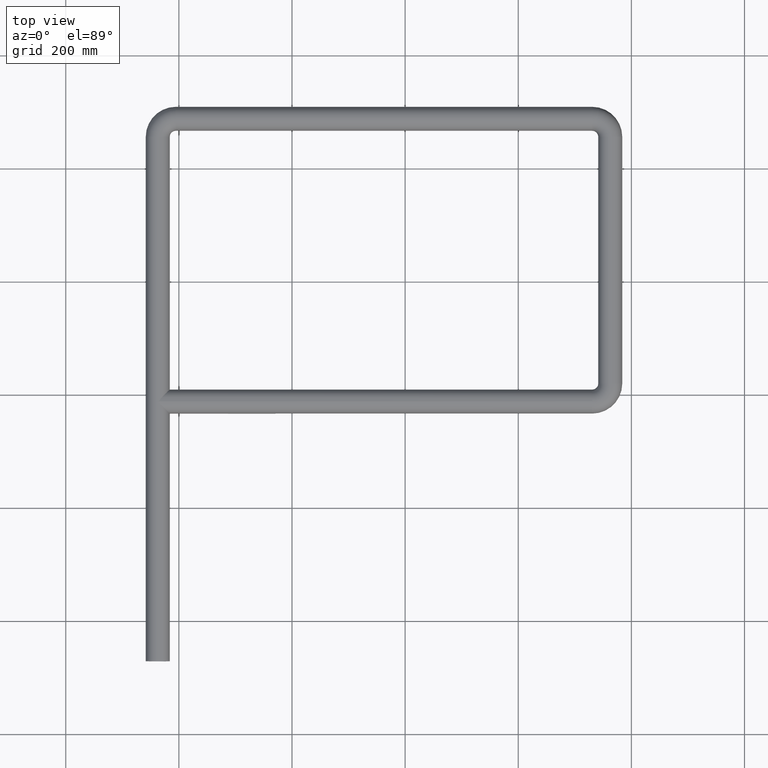
[diagram: clean part render]
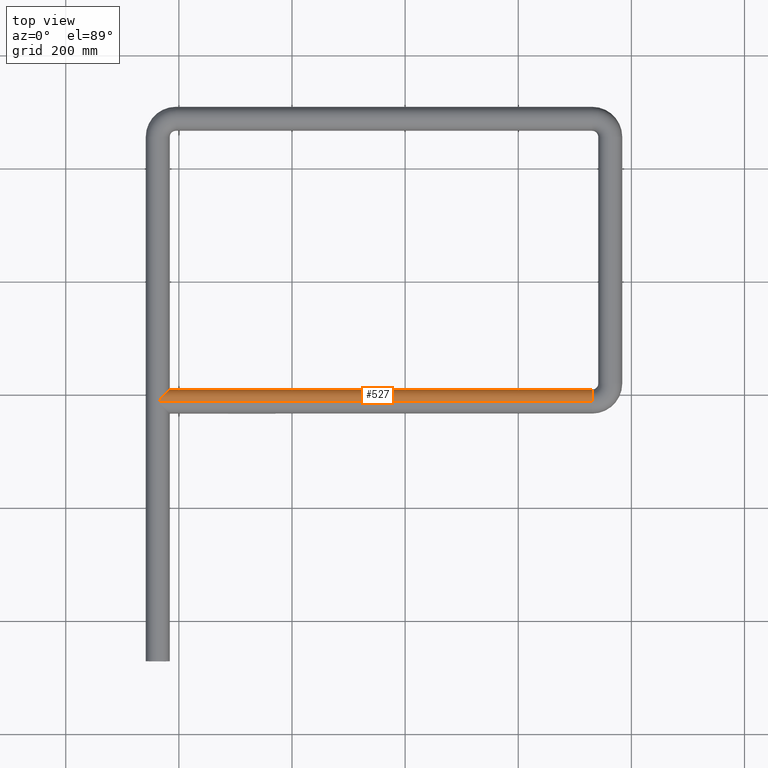
[diagram: same view with one face highlighted and labeled with its STEP entity id]
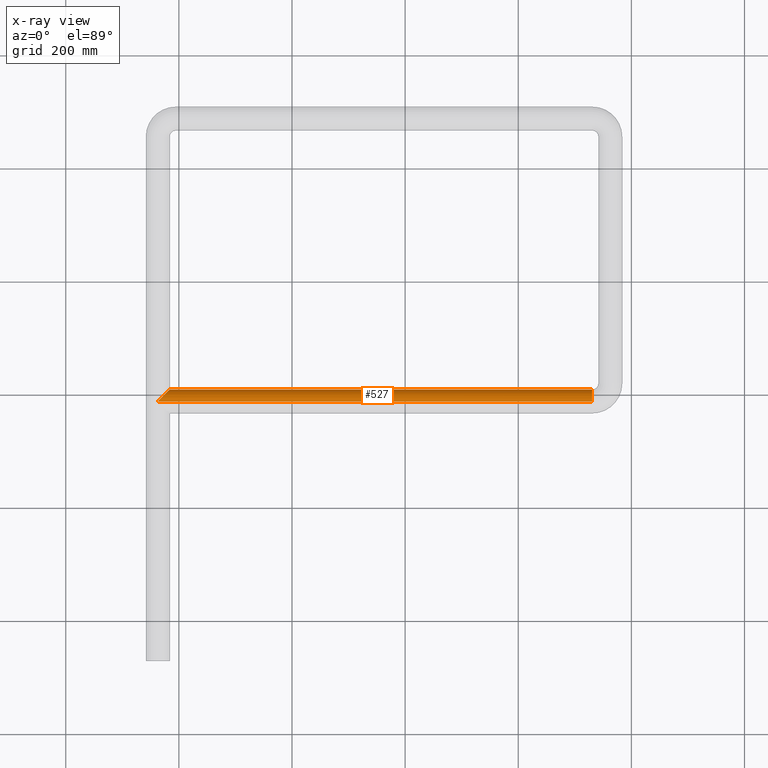
[diagram: x-ray of the same camera — body ghosted, the highlighted face saturated]
A machine part, top view. The second image highlights one B-rep face of the part: STEP entity #527.
The next image is the same camera in x-ray: the body ghosted, the highlighted face saturated — about 0% of this face is hidden behind the body in this view.
In plain terms, the highlighted cylindrical surface (edge-blend (fillet) strip) has radius 21.2 mm, axis along (-1, -0, -0).
Its self-contained STEP definition (entity closure, byte-faithful):
#23 = CARTESIAN_POINT ( 'NONE',  ( -400.0000000000000000, 459.0000000000000568, 21.19999999999999929 ) ) ;
#50 = ORIENTED_EDGE ( 'NONE', *, *, #1196, .F. ) ;
#51 = CARTESIAN_POINT ( 'NONE',  ( -378.8000000000000682, 480.2000000000001023, -12.41867247769037697 ) ) ;
#61 = ORIENTED_EDGE ( 'NONE', *, *, #993, .F. ) ;
#95 = CARTESIAN_POINT ( 'NONE',  ( -378.8000000000000682, 480.2000000000001023, 12.41867247769038229 ) ) ;
#120 = CARTESIAN_POINT ( 'NONE',  ( -378.8000000000000114, 480.2000000000001023, 0.000000000000000000 ) ) ;
#139 = ORIENTED_EDGE ( 'NONE', *, *, #932, .F. ) ;
#164 = CARTESIAN_POINT ( 'NONE',  ( 368.0000000000000568, 459.0000000000000568, -21.19999999999999929 ) ) ;
#201 =( BOUNDED_CURVE ( )  B_SPLINE_CURVE ( 3, ( #23, #872, #95, #1277 ),
 .UNSPECIFIED., .F., .T. ) 
 B_SPLINE_CURVE_WITH_KNOTS ( ( 4, 4 ),
 ( 1.570796326794896558, 3.141592653589793116 ),
 .UNSPECIFIED. ) 
 CURVE ( )  GEOMETRIC_REPRESENTATION_ITEM ( )  RATIONAL_B_SPLINE_CURVE ( ( 1.000000000000000000, 0.8047378541243649375, 0.8047378541243649375, 1.000000000000000000 ) ) 
 REPRESENTATION_ITEM ( '' )  );
#207 = EDGE_LOOP ( 'NONE', ( #50, #1064, #456, #61, #139 ) ) ;
#227 = VERTEX_POINT ( 'NONE', #868 ) ;
#246 = VERTEX_POINT ( 'NONE', #335 ) ;
#261 = DIRECTION ( 'NONE',  ( 1.000000000000000000, -6.033820786006284731E-16, 0.000000000000000000 ) ) ;
#335 = CARTESIAN_POINT ( 'NONE',  ( 368.0000000000000568, 459.0000000000000568, -21.19999999999999929 ) ) ;
#337 = AXIS2_PLACEMENT_3D ( 'NONE', #692, #261, #376 ) ;
#342 = DIRECTION ( 'NONE',  ( 0.000000000000000000, 0.000000000000000000, 1.000000000000000000 ) ) ;
#376 = DIRECTION ( 'NONE',  ( 0.000000000000000000, 1.000000000000000000, 0.000000000000000000 ) ) ;
#456 = ORIENTED_EDGE ( 'NONE', *, *, #505, .F. ) ;
#464 = VERTEX_POINT ( 'NONE', #728 ) ;
#505 = EDGE_CURVE ( 'NONE', #227, #806, #743, .T. ) ;
#516 = FACE_OUTER_BOUND ( 'NONE', #207, .T. ) ;
#527 = ADVANCED_FACE ( 'NONE', ( #516 ), #807, .T. ) ;
#528 = DIRECTION ( 'NONE',  ( -1.000000000000000000, -0.000000000000000000, -0.000000000000000000 ) ) ;
#536 = VECTOR ( 'NONE', #679, 1000.000000000000000 ) ;
#624 = VERTEX_POINT ( 'NONE', #717 ) ;
#655 = CIRCLE ( 'NONE', #337, 21.19999999999999574 ) ;
#679 = DIRECTION ( 'NONE',  ( -1.000000000000000000, -0.000000000000000000, -0.000000000000000000 ) ) ;
#692 = CARTESIAN_POINT ( 'NONE',  ( 368.0000000000000568, 459.0000000000000568, 0.000000000000000000 ) ) ;
#696 = LINE ( 'NONE', #164, #931 ) ;
#717 = CARTESIAN_POINT ( 'NONE',  ( -400.0000000000000000, 459.0000000000000568, 21.19999999999999929 ) ) ;
#728 = CARTESIAN_POINT ( 'NONE',  ( 368.0000000000000568, 459.0000000000000568, 21.19999999999999929 ) ) ;
#743 =( BOUNDED_CURVE ( )  B_SPLINE_CURVE ( 3, ( #120, #51, #1253, #1016 ),
 .UNSPECIFIED., .F., .T. ) 
 B_SPLINE_CURVE_WITH_KNOTS ( ( 4, 4 ),
 ( 3.141592653589793116, 4.712388980384689674 ),
 .UNSPECIFIED. ) 
 CURVE ( )  GEOMETRIC_REPRESENTATION_ITEM ( )  RATIONAL_B_SPLINE_CURVE ( ( 1.000000000000000000, 0.8047378541243649375, 0.8047378541243649375, 1.000000000000000000 ) ) 
 REPRESENTATION_ITEM ( '' )  );
#767 = EDGE_CURVE ( 'NONE', #246, #806, #696, .T. ) ;
#783 = LINE ( 'NONE', #1202, #536 ) ;
#806 = VERTEX_POINT ( 'NONE', #1029 ) ;
#807 = CYLINDRICAL_SURFACE ( 'NONE', #1240, 21.19999999999999929 ) ;
#839 = DIRECTION ( 'NONE',  ( -1.000000000000000000, -0.000000000000000000, -0.000000000000000000 ) ) ;
#868 = CARTESIAN_POINT ( 'NONE',  ( -378.8000000000000114, 480.2000000000001023, 0.000000000000000000 ) ) ;
#872 = CARTESIAN_POINT ( 'NONE',  ( -387.5813275223095502, 471.4186724776905066, 21.19999999999999218 ) ) ;
#931 = VECTOR ( 'NONE', #839, 1000.000000000000000 ) ;
#932 = EDGE_CURVE ( 'NONE', #464, #624, #783, .T. ) ;
#993 = EDGE_CURVE ( 'NONE', #624, #227, #201, .T. ) ;
#1016 = CARTESIAN_POINT ( 'NONE',  ( -400.0000000000000000, 459.0000000000000568, -21.19999999999999929 ) ) ;
#1029 = CARTESIAN_POINT ( 'NONE',  ( -400.0000000000000000, 459.0000000000000568, -21.19999999999999929 ) ) ;
#1064 = ORIENTED_EDGE ( 'NONE', *, *, #767, .T. ) ;
#1196 = EDGE_CURVE ( 'NONE', #246, #464, #655, .T. ) ;
#1202 = CARTESIAN_POINT ( 'NONE',  ( 368.0000000000000568, 459.0000000000000568, 21.19999999999999929 ) ) ;
#1233 = CARTESIAN_POINT ( 'NONE',  ( 368.0000000000000568, 459.0000000000000568, 0.000000000000000000 ) ) ;
#1240 = AXIS2_PLACEMENT_3D ( 'NONE', #1233, #528, #342 ) ;
#1253 = CARTESIAN_POINT ( 'NONE',  ( -387.5813275223095502, 471.4186724776905066, -21.19999999999999218 ) ) ;
#1277 = CARTESIAN_POINT ( 'NONE',  ( -378.8000000000000114, 480.2000000000001023, 0.000000000000000000 ) ) ;